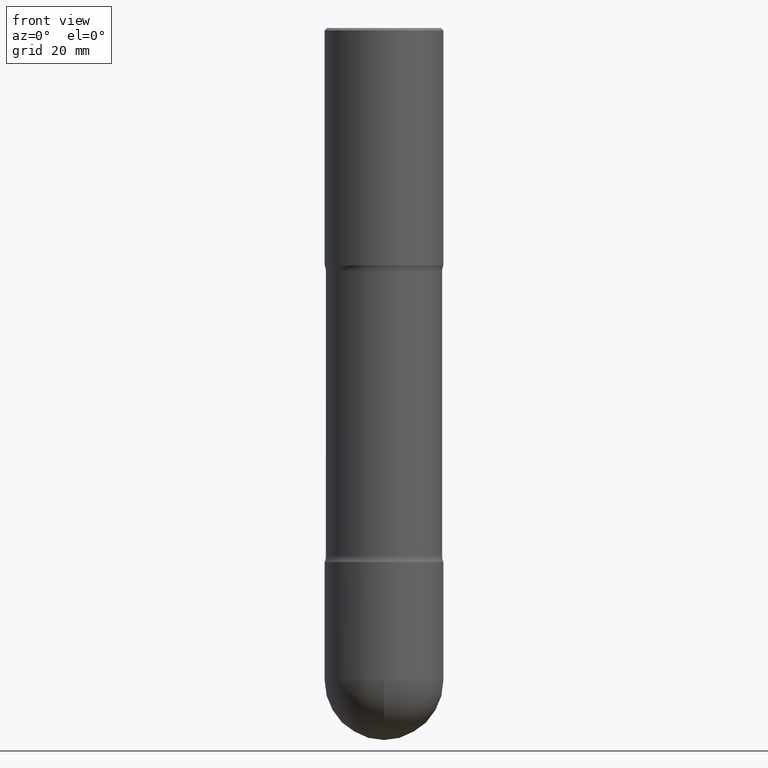
[diagram: clean part render]
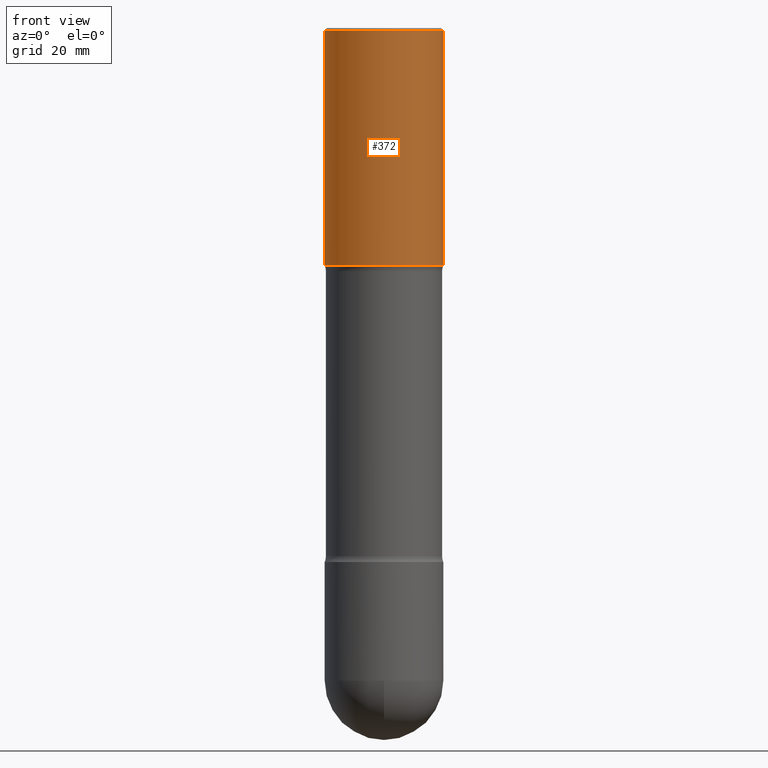
[diagram: same view with one face highlighted and labeled with its STEP entity id]
A machine part, front view. The second image highlights one B-rep face of the part: STEP entity #372.
In plain terms, the highlighted cylindrical surface (partial cylindrical patch) has radius 12.7 mm, axis along (0, -0, -1).
Its self-contained STEP definition (entity closure, byte-faithful):
#27 = DIRECTION ( 'NONE',  ( -1.000000000000000000, 6.982962677686265133E-15, 0.000000000000000000 ) ) ;
#34 = VECTOR ( 'NONE', #410, 39.37007874015748143 ) ;
#36 = ORIENTED_EDGE ( 'NONE', *, *, #559, .T. ) ;
#43 = AXIS2_PLACEMENT_3D ( 'NONE', #257, #219, #344 ) ;
#92 = ORIENTED_EDGE ( 'NONE', *, *, #517, .F. ) ;
#94 = CARTESIAN_POINT ( 'NONE',  ( 1.100460962783311693E-28, -1.571166602479415690E-14, -4.500000000000000888 ) ) ;
#123 = EDGE_CURVE ( 'NONE', #256, #304, #338, .T. ) ;
#165 = VERTEX_POINT ( 'NONE', #385 ) ;
#170 = CARTESIAN_POINT ( 'NONE',  ( 0.4999999999999998335, -1.914191502367992268E-14, -4.500000000000000888 ) ) ;
#189 = CARTESIAN_POINT ( 'NONE',  ( -0.4999999999999998335, -1.222018468595102670E-14, -4.500000000000000888 ) ) ;
#198 = AXIS2_PLACEMENT_3D ( 'NONE', #239, #241, #326 ) ;
#219 = DIRECTION ( 'NONE',  ( 2.445468806185136597E-29, -3.491481338843145583E-15, -1.000000000000000000 ) ) ;
#239 = CARTESIAN_POINT ( 'NONE',  ( 4.890937612370277678E-29, -6.982962677686296687E-15, -2.000000000000001776 ) ) ;
#241 = DIRECTION ( 'NONE',  ( 2.445468806185136597E-29, -3.491481338843145583E-15, -1.000000000000000000 ) ) ;
#256 = VERTEX_POINT ( 'NONE', #547 ) ;
#257 = CARTESIAN_POINT ( 'NONE',  ( 4.890937612370354609E-31, -6.982962677686407473E-17, -0.02000000000000033348 ) ) ;
#291 = CIRCLE ( 'NONE', #198, 0.5000000000000000000 ) ;
#293 = EDGE_CURVE ( 'NONE', #165, #496, #359, .T. ) ;
#304 = VERTEX_POINT ( 'NONE', #353 ) ;
#311 = ORIENTED_EDGE ( 'NONE', *, *, #123, .F. ) ;
#326 = DIRECTION ( 'NONE',  ( -1.000000000000000000, 6.982962677686266711E-15, 0.000000000000000000 ) ) ;
#338 = LINE ( 'NONE', #170, #434 ) ;
#344 = DIRECTION ( 'NONE',  ( -1.000000000000000000, 6.982962677686266711E-15, 0.000000000000000000 ) ) ;
#353 = CARTESIAN_POINT ( 'NONE',  ( 0.5000000000000000000, -6.956645151117346563E-15, -2.000000000000001776 ) ) ;
#359 = LINE ( 'NONE', #189, #34 ) ;
#366 = DIRECTION ( 'NONE',  ( 2.445468806185136597E-29, -3.491481338843145583E-15, -1.000000000000000000 ) ) ;
#372 = ADVANCED_FACE ( 'NONE', ( #459 ), #414, .T. ) ;
#385 = CARTESIAN_POINT ( 'NONE',  ( -0.4999999999999996669, 3.421651712066266507E-15, -0.02000000000000033348 ) ) ;
#410 = DIRECTION ( 'NONE',  ( 2.445468806185136877E-29, -3.491481338843145188E-15, -1.000000000000000000 ) ) ;
#414 = CYLINDRICAL_SURFACE ( 'NONE', #507, 0.4999999999999998335 ) ;
#428 = EDGE_LOOP ( 'NONE', ( #311, #36, #546, #92 ) ) ;
#434 = VECTOR ( 'NONE', #520, 39.37007874015748143 ) ;
#459 = FACE_OUTER_BOUND ( 'NONE', #428, .T. ) ;
#496 = VERTEX_POINT ( 'NONE', #548 ) ;
#507 = AXIS2_PLACEMENT_3D ( 'NONE', #94, #366, #27 ) ;
#517 = EDGE_CURVE ( 'NONE', #304, #496, #291, .T. ) ;
#518 = CIRCLE ( 'NONE', #43, 0.4999999999999996669 ) ;
#520 = DIRECTION ( 'NONE',  ( 2.445468806185136877E-29, -3.491481338843145188E-15, -1.000000000000000000 ) ) ;
#546 = ORIENTED_EDGE ( 'NONE', *, *, #293, .T. ) ;
#547 = CARTESIAN_POINT ( 'NONE',  ( 0.4999999999999996669, -3.500078625662627896E-15, -0.02000000000000033348 ) ) ;
#548 = CARTESIAN_POINT ( 'NONE',  ( -0.5000000000000000000, -3.491481338843163332E-15, -2.000000000000001776 ) ) ;
#559 = EDGE_CURVE ( 'NONE', #256, #165, #518, .T. ) ;